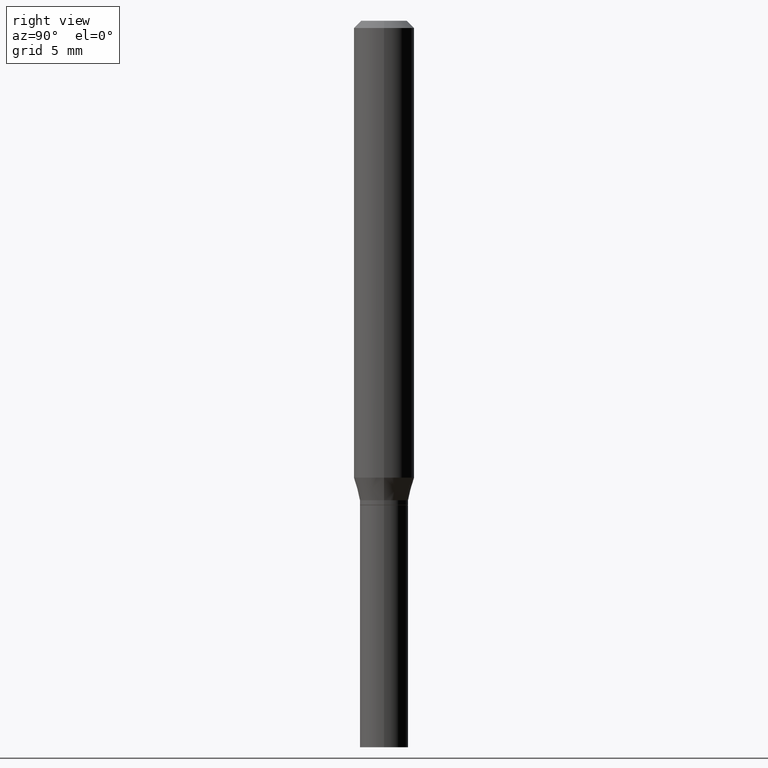
[diagram: clean part render]
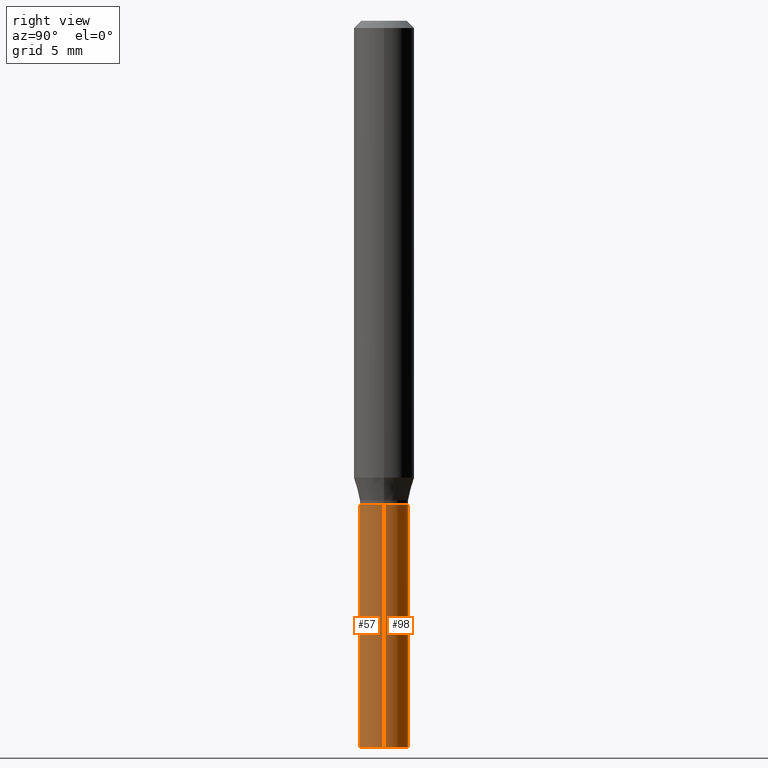
[diagram: same view with one multi-face feature highlighted, each face labeled with its STEP entity id]
A machine part, right view. The highlighted faces form ONE feature: a constant-radius fillet chain: 2 tangent blend faces with common blend radius 1.27 mm. The faces share edges in the B-rep.
Their STEP definitions:
[1] entity #98 (Cylinder):
#32 = CARTESIAN_POINT ( 'NONE',  ( 0.05000000000000000278, -5.586370142149032301E-15, -1.500000000000000222 ) ) ;
#33 = CARTESIAN_POINT ( 'NONE',  ( 0.05000000000000000278, -3.840629472727459313E-15, -1.000000000000000222 ) ) ;
#41 = DIRECTION ( 'NONE',  ( -2.445468806185136597E-29, 3.491481338843145583E-15, 1.000000000000000000 ) ) ;
#47 = VERTEX_POINT ( 'NONE', #32 ) ;
#52 = AXIS2_PLACEMENT_3D ( 'NONE', #400, #80, #234 ) ;
#58 = DIRECTION ( 'NONE',  ( -2.445468806185136877E-29, 3.491481338843145188E-15, 1.000000000000000000 ) ) ;
#80 = DIRECTION ( 'NONE',  ( -2.445468806185136597E-29, 3.491481338843145583E-15, 1.000000000000000000 ) ) ;
#87 = VECTOR ( 'NONE', #152, 39.37007874015748143 ) ;
#91 = CARTESIAN_POINT ( 'NONE',  ( 2.445468806185136877E-29, -3.491481338843145977E-15, -1.000000000000000222 ) ) ;
#98 = ADVANCED_FACE ( 'NONE', ( #112 ), #262, .T. ) ;
#104 = VECTOR ( 'NONE', #58, 39.37007874015748143 ) ;
#112 = FACE_OUTER_BOUND ( 'NONE', #240, .T. ) ;
#152 = DIRECTION ( 'NONE',  ( -2.445468806185136877E-29, 3.491481338843145188E-15, 1.000000000000000000 ) ) ;
#157 = ORIENTED_EDGE ( 'NONE', *, *, #232, .F. ) ;
#158 = DIRECTION ( 'NONE',  ( 1.000000000000000000, -6.982962677686264344E-15, 0.000000000000000000 ) ) ;
#181 = CARTESIAN_POINT ( 'NONE',  ( -0.05000000000000000278, -4.009080305673882063E-15, -1.500000000000000222 ) ) ;
#186 = ORIENTED_EDGE ( 'NONE', *, *, #314, .F. ) ;
#193 = CARTESIAN_POINT ( 'NONE',  ( -0.05000000000000000278, 3.552713678800501127E-16, -2.459467545127453311E-30 ) ) ;
#216 = AXIS2_PLACEMENT_3D ( 'NONE', #91, #41, #158 ) ;
#222 = DIRECTION ( 'NONE',  ( -2.445468806185136597E-29, 3.491481338843145583E-15, 1.000000000000000000 ) ) ;
#232 = EDGE_CURVE ( 'NONE', #399, #454, #263, .T. ) ;
#234 = DIRECTION ( 'NONE',  ( 1.000000000000000000, -6.982962677686267499E-15, 4.876176775795936353E-29 ) ) ;
#240 = EDGE_LOOP ( 'NONE', ( #410, #270, #157, #186 ) ) ;
#245 = EDGE_CURVE ( 'NONE', #47, #273, #390, .T. ) ;
#262 = CYLINDRICAL_SURFACE ( 'NONE', #52, 0.05000000000000000278 ) ;
#263 = CIRCLE ( 'NONE', #216, 0.05000000000000000278 ) ;
#270 = ORIENTED_EDGE ( 'NONE', *, *, #349, .T. ) ;
#273 = VERTEX_POINT ( 'NONE', #181 ) ;
#293 = DIRECTION ( 'NONE',  ( 1.000000000000000000, -6.982962677686274599E-15, 0.000000000000000000 ) ) ;
#305 = LINE ( 'NONE', #193, #87 ) ;
#307 = AXIS2_PLACEMENT_3D ( 'NONE', #377, #222, #293 ) ;
#314 = EDGE_CURVE ( 'NONE', #47, #399, #322, .T. ) ;
#322 = LINE ( 'NONE', #456, #104 ) ;
#349 = EDGE_CURVE ( 'NONE', #273, #454, #305, .T. ) ;
#377 = CARTESIAN_POINT ( 'NONE',  ( 3.668203209277704895E-29, -5.237222008264718177E-15, -1.500000000000000222 ) ) ;
#390 = CIRCLE ( 'NONE', #307, 0.05000000000000000278 ) ;
#399 = VERTEX_POINT ( 'NONE', #33 ) ;
#400 = CARTESIAN_POINT ( 'NONE',  ( 0.000000000000000000, 0.000000000000000000, 0.000000000000000000 ) ) ;
#410 = ORIENTED_EDGE ( 'NONE', *, *, #245, .T. ) ;
#411 = CARTESIAN_POINT ( 'NONE',  ( -0.05000000000000000278, -4.009080305673882063E-15, -1.000000000000000222 ) ) ;
#454 = VERTEX_POINT ( 'NONE', #411 ) ;
#456 = CARTESIAN_POINT ( 'NONE',  ( 0.05000000000000000278, -3.491481338843133848E-16, 2.438088387897968247E-30 ) ) ;
[2] entity #57 (Cylinder):
#4 = FACE_OUTER_BOUND ( 'NONE', #430, .T. ) ;
#28 = DIRECTION ( 'NONE',  ( 1.000000000000000000, -6.982962677686267499E-15, 4.876176775795936353E-29 ) ) ;
#32 = CARTESIAN_POINT ( 'NONE',  ( 0.05000000000000000278, -5.586370142149032301E-15, -1.500000000000000222 ) ) ;
#33 = CARTESIAN_POINT ( 'NONE',  ( 0.05000000000000000278, -3.840629472727459313E-15, -1.000000000000000222 ) ) ;
#47 = VERTEX_POINT ( 'NONE', #32 ) ;
#57 = ADVANCED_FACE ( 'NONE', ( #4 ), #117, .T. ) ;
#58 = DIRECTION ( 'NONE',  ( -2.445468806185136877E-29, 3.491481338843145188E-15, 1.000000000000000000 ) ) ;
#75 = ORIENTED_EDGE ( 'NONE', *, *, #349, .F. ) ;
#87 = VECTOR ( 'NONE', #152, 39.37007874015748143 ) ;
#104 = VECTOR ( 'NONE', #58, 39.37007874015748143 ) ;
#108 = ORIENTED_EDGE ( 'NONE', *, *, #401, .T. ) ;
#117 = CYLINDRICAL_SURFACE ( 'NONE', #321, 0.05000000000000000278 ) ;
#136 = DIRECTION ( 'NONE',  ( 1.000000000000000000, -6.982962677686264344E-15, 0.000000000000000000 ) ) ;
#144 = ORIENTED_EDGE ( 'NONE', *, *, #314, .T. ) ;
#152 = DIRECTION ( 'NONE',  ( -2.445468806185136877E-29, 3.491481338843145188E-15, 1.000000000000000000 ) ) ;
#156 = DIRECTION ( 'NONE',  ( 1.000000000000000000, -6.982962677686274599E-15, 0.000000000000000000 ) ) ;
#180 = EDGE_CURVE ( 'NONE', #454, #399, #339, .T. ) ;
#181 = CARTESIAN_POINT ( 'NONE',  ( -0.05000000000000000278, -4.009080305673882063E-15, -1.500000000000000222 ) ) ;
#193 = CARTESIAN_POINT ( 'NONE',  ( -0.05000000000000000278, 3.552713678800501127E-16, -2.459467545127453311E-30 ) ) ;
#197 = CARTESIAN_POINT ( 'NONE',  ( 3.668203209277704895E-29, -5.237222008264718177E-15, -1.500000000000000222 ) ) ;
#203 = CARTESIAN_POINT ( 'NONE',  ( 2.445468806185136877E-29, -3.491481338843145977E-15, -1.000000000000000222 ) ) ;
#228 = AXIS2_PLACEMENT_3D ( 'NONE', #197, #334, #156 ) ;
#259 = DIRECTION ( 'NONE',  ( -2.445468806185136597E-29, 3.491481338843145583E-15, 1.000000000000000000 ) ) ;
#268 = CIRCLE ( 'NONE', #228, 0.05000000000000000278 ) ;
#273 = VERTEX_POINT ( 'NONE', #181 ) ;
#305 = LINE ( 'NONE', #193, #87 ) ;
#314 = EDGE_CURVE ( 'NONE', #47, #399, #322, .T. ) ;
#321 = AXIS2_PLACEMENT_3D ( 'NONE', #356, #259, #28 ) ;
#322 = LINE ( 'NONE', #456, #104 ) ;
#334 = DIRECTION ( 'NONE',  ( -2.445468806185136597E-29, 3.491481338843145583E-15, 1.000000000000000000 ) ) ;
#339 = CIRCLE ( 'NONE', #402, 0.05000000000000000278 ) ;
#349 = EDGE_CURVE ( 'NONE', #273, #454, #305, .T. ) ;
#356 = CARTESIAN_POINT ( 'NONE',  ( 0.000000000000000000, 0.000000000000000000, 0.000000000000000000 ) ) ;
#399 = VERTEX_POINT ( 'NONE', #33 ) ;
#401 = EDGE_CURVE ( 'NONE', #273, #47, #268, .T. ) ;
#402 = AXIS2_PLACEMENT_3D ( 'NONE', #203, #449, #136 ) ;
#406 = ORIENTED_EDGE ( 'NONE', *, *, #180, .F. ) ;
#411 = CARTESIAN_POINT ( 'NONE',  ( -0.05000000000000000278, -4.009080305673882063E-15, -1.000000000000000222 ) ) ;
#430 = EDGE_LOOP ( 'NONE', ( #75, #108, #144, #406 ) ) ;
#449 = DIRECTION ( 'NONE',  ( -2.445468806185136597E-29, 3.491481338843145583E-15, 1.000000000000000000 ) ) ;
#454 = VERTEX_POINT ( 'NONE', #411 ) ;
#456 = CARTESIAN_POINT ( 'NONE',  ( 0.05000000000000000278, -3.491481338843133848E-16, 2.438088387897968247E-30 ) ) ;